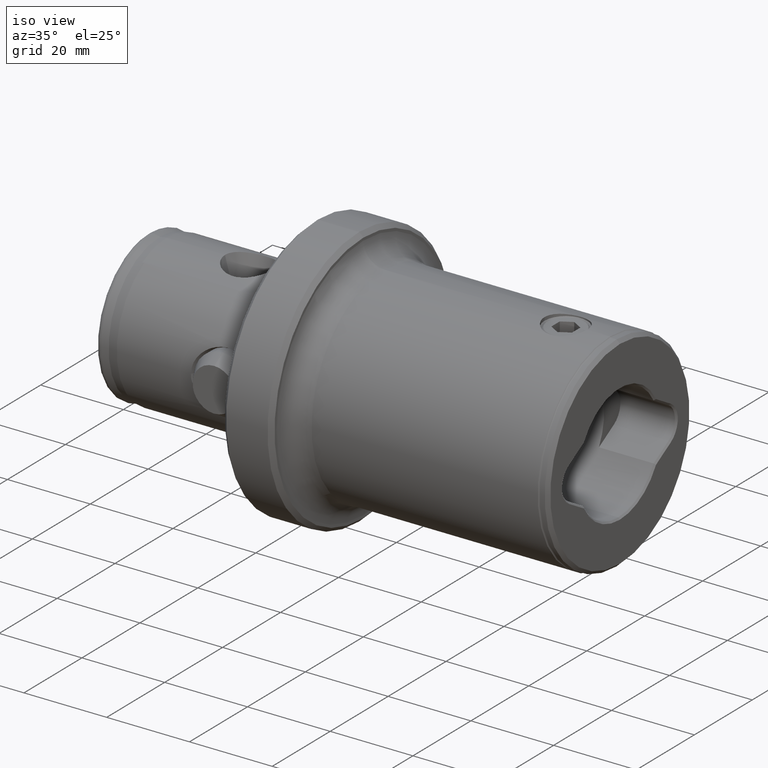
[diagram: clean part render]
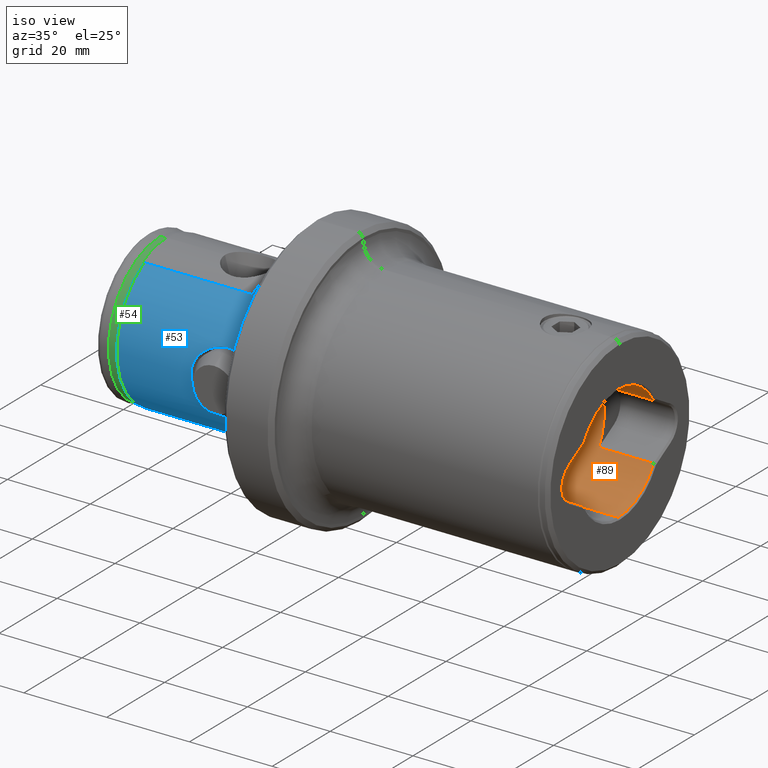
[diagram: same view with three faces highlighted in distinct colors, each labeled with its STEP entity id]
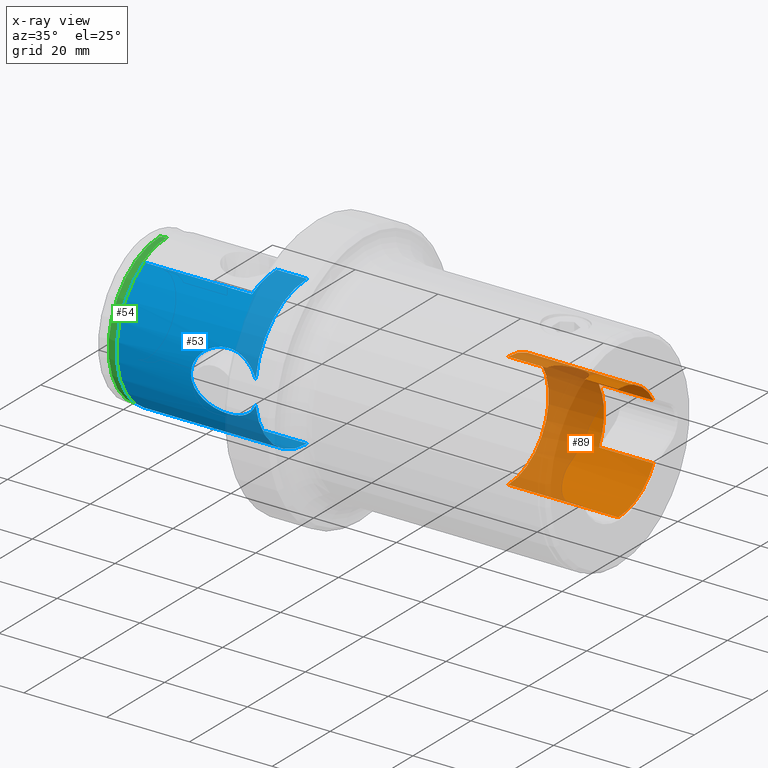
[diagram: x-ray of the same camera — body ghosted, the three highlighted faces saturated]
A machine part, iso view with three faces highlighted in distinct colors.
The next image is the same camera in x-ray (body ghosted, the three faces saturated) — at least one of them is partly hidden behind the body in this view.
Their STEP definitions:

[orange] entity #89 — the highlighted cylindrical surface (partial cylindrical patch) has radius 14 mm, axis along (1, 0, 0).
#36 = B_SPLINE_CURVE_WITH_KNOTS ( 'NONE', 3,
 ( #3804, #3805, #3806, #3807, #3808, #3809, #3810, #3811, #3812, #3813, #3814, #3815, #3816, #3817, #3818, #3819, #3820, #3821, #3822, #3823, #3824, #3825, #3826, #3827, #3828, #3829, #3830, #3831, #3832, #3833, #3834, #3835, #3836, #3837, #3838, #3839, #3840 ),
 .UNSPECIFIED., .F., .F.,
 ( 4, 2, 2, 2, 2, 2, 2, 2, 2, 2, 2, 2, 1, 2, 2, 2, 2, 2, 4 ),
 ( 0.0000000000000000000, 0.06249950408667014800, 0.07812438010833752700, 0.09374925613000491300, 0.1249990081733396800, 0.1874985122600092400, 0.1953109502708440500, 0.2031233882816788600, 0.2187482643033471200, 0.2499980163466850300, 0.3124975204333608200, 0.3203099584441949600, 0.3281223964550291600, 0.3437472724766987300, 0.3749970245200379700, 0.4062467765633772100, 0.4374965286067164500, 0.4687462806500556900, 0.4999960326933949300 ),
 .UNSPECIFIED. ) ;
#89 = ADVANCED_FACE ( 'NONE', ( #2107 ), #2108, .F. ) ;
#136 = EDGE_CURVE ( 'NONE', #1863, #1823, #396, .T. ) ;
#137 = EDGE_CURVE ( 'NONE', #1750, #1762, #2154, .T. ) ;
#238 = EDGE_CURVE ( 'NONE', #1723, #1750, #3104, .T. ) ;
#322 = AXIS2_PLACEMENT_3D ( 'NONE', #1187, #1188, #1189 ) ;
#396 = CIRCLE ( 'NONE', #397, 13.99999999999999500 ) ;
#397 = AXIS2_PLACEMENT_3D ( 'NONE', #2604, #2605, #2606 ) ;
#400 = VECTOR ( 'NONE', #2608, 1000.000000000000000 ) ;
#610 = ORIENTED_EDGE ( 'NONE', *, *, #1283, .F. ) ;
#613 = ORIENTED_EDGE ( 'NONE', *, *, #1291, .T. ) ;
#614 = ORIENTED_EDGE ( 'NONE', *, *, #136, .T. ) ;
#615 = ORIENTED_EDGE ( 'NONE', *, *, #137, .T. ) ;
#616 = ORIENTED_EDGE ( 'NONE', *, *, #238, .T. ) ;
#830 = ORIENTED_EDGE ( 'NONE', *, *, #1327, .T. ) ;
#831 = ORIENTED_EDGE ( 'NONE', *, *, #1326, .F. ) ;
#832 = ORIENTED_EDGE ( 'NONE', *, *, #1328, .T. ) ;
#833 = ORIENTED_EDGE ( 'NONE', *, *, #1285, .F. ) ;
#834 = ORIENTED_EDGE ( 'NONE', *, *, #1329, .T. ) ;
#1187 = CARTESIAN_POINT ( 'NONE',  ( 114.0000000000000000, 0.0000000000000000000, 0.0000000000000000000 ) ) ;
#1188 = DIRECTION ( 'NONE',  ( 1.000000000000000000, -0.0000000000000000000, -0.0000000000000000000 ) ) ;
#1189 = DIRECTION ( 'NONE',  ( 0.0000000000000000000, 0.0000000000000000000, -1.000000000000000000 ) ) ;
#1283 = EDGE_CURVE ( 'NONE', #1863, #1715, #2204, .T. ) ;
#1285 = EDGE_CURVE ( 'NONE', #1717, #1718, #2205, .T. ) ;
#1291 = EDGE_CURVE ( 'NONE', #1823, #1723, #2208, .T. ) ;
#1326 = EDGE_CURVE ( 'NONE', #1834, #1762, #3189, .T. ) ;
#1327 = EDGE_CURVE ( 'NONE', #1834, #1746, #2223, .T. ) ;
#1328 = EDGE_CURVE ( 'NONE', #1746, #1718, #3200, .T. ) ;
#1329 = EDGE_CURVE ( 'NONE', #1717, #1715, #36, .T. ) ;
#1715 = VERTEX_POINT ( 'NONE', #4944 ) ;
#1717 = VERTEX_POINT ( 'NONE', #4946 ) ;
#1718 = VERTEX_POINT ( 'NONE', #4947 ) ;
#1723 = VERTEX_POINT ( 'NONE', #4952 ) ;
#1746 = VERTEX_POINT ( 'NONE', #4975 ) ;
#1750 = VERTEX_POINT ( 'NONE', #4979 ) ;
#1762 = VERTEX_POINT ( 'NONE', #4991 ) ;
#1823 = VERTEX_POINT ( 'NONE', #5052 ) ;
#1834 = VERTEX_POINT ( 'NONE', #5063 ) ;
#1863 = VERTEX_POINT ( 'NONE', #5092 ) ;
#1991 = EDGE_LOOP ( 'NONE', ( #610, #614, #613, #616, #615, #831, #830, #832, #833, #834 ) ) ;
#2107 = FACE_OUTER_BOUND ( 'NONE', #1991, .T. ) ;
#2108 = CYLINDRICAL_SURFACE ( 'NONE', #322, 13.99999999999999500 ) ;
#2154 = LINE ( 'NONE', #2607, #400 ) ;
#2204 = LINE ( 'NONE', #3635, #3138 ) ;
#2205 = LINE ( 'NONE', #3640, #3140 ) ;
#2208 = LINE ( 'NONE', #3655, #3149 ) ;
#2223 = LINE ( 'NONE', #3799, #3202 ) ;
#2604 = CARTESIAN_POINT ( 'NONE',  ( 87.00000000000000000, 0.0000000000000000000, 0.0000000000000000000 ) ) ;
#2605 = DIRECTION ( 'NONE',  ( -1.000000000000000000, -0.0000000000000000000, -0.0000000000000000000 ) ) ;
#2606 = DIRECTION ( 'NONE',  ( 0.0000000000000000000, 0.0000000000000000000, -1.000000000000000000 ) ) ;
#2607 = CARTESIAN_POINT ( 'NONE',  ( 114.0000000000000000, 12.19736786006797200, -6.871987870054826300 ) ) ;
#2608 = DIRECTION ( 'NONE',  ( -1.000000000000000000, 0.0000000000000000000, 0.0000000000000000000 ) ) ;
#3104 = CIRCLE ( 'NONE', #3106, 13.99999999999999500 ) ;
#3106 = AXIS2_PLACEMENT_3D ( 'NONE', #3539, #3540, #3541 ) ;
#3138 = VECTOR ( 'NONE', #3636, 1000.000000000000000 ) ;
#3140 = VECTOR ( 'NONE', #3641, 1000.000000000000000 ) ;
#3149 = VECTOR ( 'NONE', #3656, 1000.000000000000000 ) ;
#3189 = CIRCLE ( 'NONE', #3199, 13.99999999999999500 ) ;
#3199 = AXIS2_PLACEMENT_3D ( 'NONE', #3796, #3797, #3798 ) ;
#3200 = CIRCLE ( 'NONE', #3203, 13.99999999999999500 ) ;
#3202 = VECTOR ( 'NONE', #3800, 1000.000000000000000 ) ;
#3203 = AXIS2_PLACEMENT_3D ( 'NONE', #3801, #3802, #3803 ) ;
#3539 = CARTESIAN_POINT ( 'NONE',  ( 113.6000000000000100, 0.0000000000000000000, 0.0000000000000000000 ) ) ;
#3540 = DIRECTION ( 'NONE',  ( 1.000000000000000000, 0.0000000000000000000, 0.0000000000000000000 ) ) ;
#3541 = DIRECTION ( 'NONE',  ( 0.0000000000000000000, 0.0000000000000000000, -1.000000000000000000 ) ) ;
#3635 = CARTESIAN_POINT ( 'NONE',  ( 114.0000000000000000, 1.714505518806294000E-015, 13.99999999999999500 ) ) ;
#3636 = DIRECTION ( 'NONE',  ( 1.000000000000000000, -0.0000000000000000000, -0.0000000000000000000 ) ) ;
#3640 = CARTESIAN_POINT ( 'NONE',  ( 114.0000000000000000, 1.714505518806294000E-015, 13.99999999999999500 ) ) ;
#3641 = DIRECTION ( 'NONE',  ( 1.000000000000000000, -0.0000000000000000000, -0.0000000000000000000 ) ) ;
#3655 = CARTESIAN_POINT ( 'NONE',  ( 114.0000000000000000, 0.0000000000000000000, -13.99999999999999500 ) ) ;
#3656 = DIRECTION ( 'NONE',  ( 1.000000000000000000, -0.0000000000000000000, -0.0000000000000000000 ) ) ;
#3796 = CARTESIAN_POINT ( 'NONE',  ( 100.4000000000327500, 0.0000000000000000000, 0.0000000000000000000 ) ) ;
#3797 = DIRECTION ( 'NONE',  ( -1.000000000000000000, -0.0000000000000000000, -0.0000000000000000000 ) ) ;
#3798 = DIRECTION ( 'NONE',  ( 0.0000000000000000000, 1.776356839400250500E-015, -1.000000000000000000 ) ) ;
#3799 = CARTESIAN_POINT ( 'NONE',  ( 114.0000000000000000, 12.19736786006796200, 6.871987870054847600 ) ) ;
#3800 = DIRECTION ( 'NONE',  ( 1.000000000000000000, -0.0000000000000000000, -0.0000000000000000000 ) ) ;
#3801 = CARTESIAN_POINT ( 'NONE',  ( 113.6000000000000100, 0.0000000000000000000, 0.0000000000000000000 ) ) ;
#3802 = DIRECTION ( 'NONE',  ( 1.000000000000000000, 0.0000000000000000000, 0.0000000000000000000 ) ) ;
#3803 = DIRECTION ( 'NONE',  ( 0.0000000000000000000, 0.0000000000000000000, -1.000000000000000000 ) ) ;
#3804 = CARTESIAN_POINT ( 'NONE',  ( 105.6000000466383400, 2.508869421684596900E-015, 13.99999999999999500 ) ) ;
#3805 = CARTESIAN_POINT ( 'NONE',  ( 105.5999976720447600, 0.5938018025182010300, 13.99999999999999600 ) ) ;
#3806 = CARTESIAN_POINT ( 'NONE',  ( 105.4794854614293500, 1.174034650935874600, 13.96219866452422500 ) ) ;
#3807 = CARTESIAN_POINT ( 'NONE',  ( 105.1782079031328600, 1.877158052867872400, 13.87430581872047100 ) ) ;
#3808 = CARTESIAN_POINT ( 'NONE',  ( 105.1131750404500500, 2.010653873775271300, 13.85549408032046200 ) ) ;
#3809 = CARTESIAN_POINT ( 'NONE',  ( 104.9699836961270700, 2.271706722817667500, 13.81509297020573400 ) ) ;
#3810 = CARTESIAN_POINT ( 'NONE',  ( 104.8924203484131400, 2.397875020013725300, 13.79367725016355300 ) ) ;
#3811 = CARTESIAN_POINT ( 'NONE',  ( 104.6418272786140000, 2.763332466569450800, 13.72681100810909900 ) ) ;
#3812 = CARTESIAN_POINT ( 'NONE',  ( 104.4508945298714900, 2.989564212874435100, 13.67876506009999500 ) ) ;
#3813 = CARTESIAN_POINT ( 'NONE',  ( 103.8064841770147700, 3.616707355888971500, 13.53158744978233900 ) ) ;
#3814 = CARTESIAN_POINT ( 'NONE',  ( 103.3049126319278800, 3.940376265468107200, 13.43621099365294400 ) ) ;
#3815 = CARTESIAN_POINT ( 'NONE',  ( 102.6634154932051500, 4.199745788673714000, 13.35526288517267300 ) ) ;
#3816 = CARTESIAN_POINT ( 'NONE',  ( 102.5895855555175600, 4.227642564713509200, 13.34645117750440100 ) ) ;
#3817 = CARTESIAN_POINT ( 'NONE',  ( 102.4437856302734200, 4.278796150722119900, 13.33013969128049000 ) ) ;
#3818 = CARTESIAN_POINT ( 'NONE',  ( 102.3706550461953400, 4.302522237460953700, 13.32249345431489100 ) ) ;
#3819 = CARTESIAN_POINT ( 'NONE',  ( 102.1505714295931300, 4.368175610425317300, 13.30117136243730900 ) ) ;
#3820 = CARTESIAN_POINT ( 'NONE',  ( 102.0029265327010000, 4.404579328301195100, 13.28911667183571900 ) ) ;
#3821 = CARTESIAN_POINT ( 'NONE',  ( 101.5572243845526400, 4.491868673230759300, 13.25997284048085200 ) ) ;
#3822 = CARTESIAN_POINT ( 'NONE',  ( 101.2563996758243500, 4.520856814323861900, 13.24997560997804200 ) ) ;
#3823 = CARTESIAN_POINT ( 'NONE',  ( 100.3428557197515100, 4.520785452917790400, 13.24999995815900500 ) ) ;
#3824 = CARTESIAN_POINT ( 'NONE',  ( 99.74821440243582100, 4.404664858736222900, 13.29133630302113300 ) ) ;
#3825 = CARTESIAN_POINT ( 'NONE',  ( 99.09323034741656500, 4.140086637813083400, 13.37387868059382100 ) ) ;
#3826 = CARTESIAN_POINT ( 'NONE',  ( 99.02411246696291900, 4.110284243416490600, 13.38307386722010200 ) ) ;
#3827 = CARTESIAN_POINT ( 'NONE',  ( 98.88551266987072100, 4.046751183028869800, 13.40242170504278900 ) ) ;
#3828 = CARTESIAN_POINT ( 'NONE',  ( 98.68090584385085200, 3.947109744631693000, 13.43239446022396200 ) ) ;
#3829 = CARTESIAN_POINT ( 'NONE',  ( 98.48617762668662600, 3.834366267092764500, 13.46494390449829500 ) ) ;
#3830 = CARTESIAN_POINT ( 'NONE',  ( 98.10989267083219500, 3.591195532004421300, 13.53261359593668300 ) ) ;
#3831 = CARTESIAN_POINT ( 'NONE',  ( 97.87659800489468900, 3.405499115871407900, 13.58120139603786400 ) ) ;
#3832 = CARTESIAN_POINT ( 'NONE',  ( 97.44513261561728300, 2.985808234256541700, 13.67959812188163800 ) ) ;
#3833 = CARTESIAN_POINT ( 'NONE',  ( 97.25547773729455500, 2.760862692621061300, 13.72730444646208500 ) ) ;
#3834 = CARTESIAN_POINT ( 'NONE',  ( 96.92177540063308100, 2.273955117672684000, 13.81630841781460700 ) ) ;
#3835 = CARTESIAN_POINT ( 'NONE',  ( 96.77881920707587000, 2.013048130802515900, 13.85735669206463200 ) ) ;
#3836 = CARTESIAN_POINT ( 'NONE',  ( 96.54069676950852900, 1.456310997435955200, 13.92687529730855000 ) ) ;
#3837 = CARTESIAN_POINT ( 'NONE',  ( 96.44997564013783600, 1.169418148817476400, 13.95408467175335500 ) ) ;
#3838 = CARTESIAN_POINT ( 'NONE',  ( 96.33005621202586600, 0.5908482686282320300, 13.99052951666607400 ) ) ;
#3839 = CARTESIAN_POINT ( 'NONE',  ( 96.30005089425390000, 0.2972843603838706800, 14.00000000000001200 ) ) ;
#3840 = CARTESIAN_POINT ( 'NONE',  ( 96.29999996673352300, -3.807692995555003300E-013, 13.99999999826350500 ) ) ;
#4944 = CARTESIAN_POINT ( 'NONE',  ( 96.29999996673352300, -3.807692995555003300E-013, 13.99999999826350500 ) ) ;
#4946 = CARTESIAN_POINT ( 'NONE',  ( 105.6000000466383400, 2.508869421684596900E-015, 13.99999999999999500 ) ) ;
#4947 = CARTESIAN_POINT ( 'NONE',  ( 113.6000000000000100, 1.714505518806294000E-015, 13.99999999999999500 ) ) ;
#4952 = CARTESIAN_POINT ( 'NONE',  ( 113.6000000000000100, 0.0000000000000000000, -13.99999999999999500 ) ) ;
#4975 = CARTESIAN_POINT ( 'NONE',  ( 113.6000000000000100, 12.19736786006796200, 6.871987870054847600 ) ) ;
#4979 = CARTESIAN_POINT ( 'NONE',  ( 113.6000000000000100, 12.19736786006797200, -6.871987870054826300 ) ) ;
#4991 = CARTESIAN_POINT ( 'NONE',  ( 100.4000000000327500, 12.19736786006797200, -6.871987870054826300 ) ) ;
#5052 = CARTESIAN_POINT ( 'NONE',  ( 87.00000000000000000, 0.0000000000000000000, -13.99999999999999500 ) ) ;
#5063 = CARTESIAN_POINT ( 'NONE',  ( 100.4000000000327500, 12.19736786006796500, 6.871987870054845800 ) ) ;
#5092 = CARTESIAN_POINT ( 'NONE',  ( 87.00000000000000000, 1.714505518806294000E-015, 13.99999999999999500 ) ) ;

[blue] entity #53 — the highlighted cylindrical surface (partial cylindrical patch) has radius 18 mm, axis along (-1, -0, -0).
#24 = B_SPLINE_CURVE_WITH_KNOTS ( 'NONE', 3,
 ( #3370, #3371, #3372, #3373, #3374, #3375, #3376, #3377, #3378, #3379, #3380, #3381, #3382, #3383, #3384, #3385, #3386, #3387, #3388, #3389, #3390, #3391, #3392, #3393, #3394, #3395, #3396, #3397, #3398, #3399, #3400, #3401, #3402, #3403 ),
 .UNSPECIFIED., .F., .F.,
 ( 4, 2, 2, 2, 2, 2, 2, 2, 2, 2, 2, 2, 2, 2, 2, 2, 4 ),
 ( 4.577879042442670400E-007, 0.001322458026375351200, 0.002644458264846457000, 0.003966458503317562900, 0.005288458741788668900, 0.007932459218730859200, 0.01057645969567305400, 0.01189845993414415100, 0.01322046017261524800, 0.01388146029185079700, 0.01454246041108634600, 0.01586446064955743900, 0.01652546076879299000, 0.01718646088802854400, 0.01850846112649964100, 0.01983046136497074200, 0.02115246160344183900 ),
 .UNSPECIFIED. ) ;
#53 = ADVANCED_FACE ( 'NONE', ( #2054 ), #2055, .T. ) ;
#202 = EDGE_CURVE ( 'NONE', #1728, #1789, #2183, .T. ) ;
#205 = EDGE_CURVE ( 'NONE', #1826, #1827, #2185, .T. ) ;
#219 = EDGE_CURVE ( 'NONE', #1728, #1795, #3077, .T. ) ;
#220 = EDGE_CURVE ( 'NONE', #1795, #1790, #24, .T. ) ;
#221 = EDGE_CURVE ( 'NONE', #1818, #1826, #3074, .T. ) ;
#222 = EDGE_CURVE ( 'NONE', #1827, #1731, #3065, .T. ) ;
#223 = EDGE_CURVE ( 'NONE', #1729, #1731, #2191, .T. ) ;
#224 = EDGE_CURVE ( 'NONE', #1789, #1729, #3085, .T. ) ;
#274 = AXIS2_PLACEMENT_3D ( 'NONE', #1069, #1070, #1071 ) ;
#728 = ORIENTED_EDGE ( 'NONE', *, *, #220, .T. ) ;
#729 = ORIENTED_EDGE ( 'NONE', *, *, #202, .F. ) ;
#730 = ORIENTED_EDGE ( 'NONE', *, *, #219, .T. ) ;
#731 = ORIENTED_EDGE ( 'NONE', *, *, #1502, .T. ) ;
#732 = ORIENTED_EDGE ( 'NONE', *, *, #221, .T. ) ;
#733 = ORIENTED_EDGE ( 'NONE', *, *, #205, .T. ) ;
#734 = ORIENTED_EDGE ( 'NONE', *, *, #222, .T. ) ;
#735 = ORIENTED_EDGE ( 'NONE', *, *, #224, .F. ) ;
#736 = ORIENTED_EDGE ( 'NONE', *, *, #223, .F. ) ;
#1069 = CARTESIAN_POINT ( 'NONE',  ( 0.0000000000000000000, 0.0000000000000000000, 0.0000000000000000000 ) ) ;
#1070 = DIRECTION ( 'NONE',  ( -1.000000000000000000, -0.0000000000000000000, -0.0000000000000000000 ) ) ;
#1071 = DIRECTION ( 'NONE',  ( 0.0000000000000000000, 0.0000000000000000000, 1.000000000000000000 ) ) ;
#1502 = EDGE_CURVE ( 'NONE', #1790, #1818, #4436, .T. ) ;
#1728 = VERTEX_POINT ( 'NONE', #4957 ) ;
#1729 = VERTEX_POINT ( 'NONE', #4958 ) ;
#1731 = VERTEX_POINT ( 'NONE', #4960 ) ;
#1789 = VERTEX_POINT ( 'NONE', #5018 ) ;
#1790 = VERTEX_POINT ( 'NONE', #5019 ) ;
#1795 = VERTEX_POINT ( 'NONE', #5024 ) ;
#1818 = VERTEX_POINT ( 'NONE', #5047 ) ;
#1826 = VERTEX_POINT ( 'NONE', #5055 ) ;
#1827 = VERTEX_POINT ( 'NONE', #5056 ) ;
#1955 = EDGE_LOOP ( 'NONE', ( #729, #730, #728, #731, #732, #733, #734, #736, #735 ) ) ;
#2054 = FACE_OUTER_BOUND ( 'NONE', #1955, .T. ) ;
#2055 = CYLINDRICAL_SURFACE ( 'NONE', #274, 17.99999999999999600 ) ;
#2183 = LINE ( 'NONE', #3024, #3062 ) ;
#2185 = LINE ( 'NONE', #3224, #3066 ) ;
#2191 = LINE ( 'NONE', #3410, #3090 ) ;
#3024 = CARTESIAN_POINT ( 'NONE',  ( 0.0000000000000000000, 2.204364238465235000E-015, -17.99999999999999600 ) ) ;
#3025 = DIRECTION ( 'NONE',  ( -1.000000000000000000, -0.0000000000000000000, -0.0000000000000000000 ) ) ;
#3062 = VECTOR ( 'NONE', #3025, 1000.000000000000000 ) ;
#3065 = CIRCLE ( 'NONE', #3088, 17.99999999999999600 ) ;
#3066 = VECTOR ( 'NONE', #3225, 1000.000000000000000 ) ;
#3074 = CIRCLE ( 'NONE', #3086, 17.99999999999999600 ) ;
#3077 = CIRCLE ( 'NONE', #3084, 17.99999999999999600 ) ;
#3084 = AXIS2_PLACEMENT_3D ( 'NONE', #3367, #3368, #3369 ) ;
#3085 = CIRCLE ( 'NONE', #3091, 17.99999999999999600 ) ;
#3086 = AXIS2_PLACEMENT_3D ( 'NONE', #3404, #3405, #3406 ) ;
#3088 = AXIS2_PLACEMENT_3D ( 'NONE', #3407, #3408, #3409 ) ;
#3090 = VECTOR ( 'NONE', #3411, 1000.000000000000000 ) ;
#3091 = AXIS2_PLACEMENT_3D ( 'NONE', #3412, #3413, #3414 ) ;
#3224 = CARTESIAN_POINT ( 'NONE',  ( 0.0000000000000000000, 0.0000000000000000000, 17.99999999999999600 ) ) ;
#3225 = DIRECTION ( 'NONE',  ( -1.000000000000000000, -0.0000000000000000000, -0.0000000000000000000 ) ) ;
#3367 = CARTESIAN_POINT ( 'NONE',  ( 38.41455850893560600, 0.0000000000000000000, 0.0000000000000000000 ) ) ;
#3368 = DIRECTION ( 'NONE',  ( -1.000000000000000000, -0.0000000000000000000, -0.0000000000000000000 ) ) ;
#3369 = DIRECTION ( 'NONE',  ( 0.0000000000000000000, 0.0000000000000000000, 1.000000000000000000 ) ) ;
#3370 = CARTESIAN_POINT ( 'NONE',  ( 38.41455850893560600, -17.77522644697580400, -2.835722969320488000 ) ) ;
#3371 = CARTESIAN_POINT ( 'NONE',  ( 38.22202641015762500, -17.71137844337933100, -3.235942854828807800 ) ) ;
#3372 = CARTESIAN_POINT ( 'NONE',  ( 37.99507072658234100, -17.63819116553967000, -3.608611484859332500 ) ) ;
#3373 = CARTESIAN_POINT ( 'NONE',  ( 37.48000134479384800, -17.48095693202914100, -4.306275557987756700 ) ) ;
#3374 = CARTESIAN_POINT ( 'NONE',  ( 37.19181581959278300, -17.39685469061268800, -4.631205550346419600 ) ) ;
#3375 = CARTESIAN_POINT ( 'NONE',  ( 36.55468267699610200, -17.22472107593113900, -5.235227008662178600 ) ) ;
#3376 = CARTESIAN_POINT ( 'NONE',  ( 36.21322769332759600, -17.13878982586033600, -5.507046361843750400 ) ) ;
#3377 = CARTESIAN_POINT ( 'NONE',  ( 35.49110008079965400, -16.97506229770261800, -5.992740301033031800 ) ) ;
#3378 = CARTESIAN_POINT ( 'NONE',  ( 35.10789554115506000, -16.89673571953524300, -6.208021203796724000 ) ) ;
#3379 = CARTESIAN_POINT ( 'NONE',  ( 33.90767941334524200, -16.68575959259132400, -6.763301545005892200 ) ) ;
#3380 = CARTESIAN_POINT ( 'NONE',  ( 33.06418919238630100, -16.58110238672853100, -7.005946324575755400 ) ) ;
#3381 = CARTESIAN_POINT ( 'NONE',  ( 31.29240741784635600, -16.48024312334201700, -7.240015666940879100 ) ) ;
#3382 = CARTESIAN_POINT ( 'NONE',  ( 30.41020211864762100, -16.48695642536555500, -7.225324597065639200 ) ) ;
#3383 = CARTESIAN_POINT ( 'NONE',  ( 29.09236604569098000, -16.58033015242459400, -7.007061721065089600 ) ) ;
#3384 = CARTESIAN_POINT ( 'NONE',  ( 28.66104706392762600, -16.62489959843416200, -6.901745302739101400 ) ) ;
#3385 = CARTESIAN_POINT ( 'NONE',  ( 27.82750759339947800, -16.73481497316496900, -6.630787486854876200 ) ) ;
#3386 = CARTESIAN_POINT ( 'NONE',  ( 27.42298261577181200, -16.80032814206619900, -6.464797898938757100 ) ) ;
#3387 = CARTESIAN_POINT ( 'NONE',  ( 26.83486332975320800, -16.91066245934652900, -6.167710642925292100 ) ) ;
#3388 = CARTESIAN_POINT ( 'NONE',  ( 26.64157620203354400, -16.94955171960911500, -6.060299734026395800 ) ) ;
#3389 = CARTESIAN_POINT ( 'NONE',  ( 26.26807447496163300, -17.02921293655130700, -5.832704614802511700 ) ) ;
#3390 = CARTESIAN_POINT ( 'NONE',  ( 26.08701584136921200, -17.07013154472707200, -5.712141590260361400 ) ) ;
#3391 = CARTESIAN_POINT ( 'NONE',  ( 25.56070703825799100, -17.19484585362744500, -5.330017455493422300 ) ) ;
#3392 = CARTESIAN_POINT ( 'NONE',  ( 25.23217109824211200, -17.28061527093933600, -5.048216595888839600 ) ) ;
#3393 = CARTESIAN_POINT ( 'NONE',  ( 24.77460461053110000, -17.40800939251690600, -4.581184096426450300 ) ) ;
#3394 = CARTESIAN_POINT ( 'NONE',  ( 24.62724907952210900, -17.45048579386304900, -4.417122096926794600 ) ) ;
#3395 = CARTESIAN_POINT ( 'NONE',  ( 24.34938088761634500, -17.53280446781712600, -4.078135548785401600 ) ) ;
#3396 = CARTESIAN_POINT ( 'NONE',  ( 24.21894353323254400, -17.57260398758734600, -3.903507979642044700 ) ) ;
#3397 = CARTESIAN_POINT ( 'NONE',  ( 23.85309246069682100, -17.68667767651107100, -3.364011678637006700 ) ) ;
#3398 = CARTESIAN_POINT ( 'NONE',  ( 23.64288762371046100, -17.75566459521486700, -2.983681196165116000 ) ) ;
#3399 = CARTESIAN_POINT ( 'NONE',  ( 23.29528484649193100, -17.87247591824912600, -2.177288049322134300 ) ) ;
#3400 = CARTESIAN_POINT ( 'NONE',  ( 23.15830401345507600, -17.92017665140759400, -1.747722691840148900 ) ) ;
#3401 = CARTESIAN_POINT ( 'NONE',  ( 22.97804128174147900, -17.98345985487322500, -0.8845549578120601700 ) ) ;
#3402 = CARTESIAN_POINT ( 'NONE',  ( 22.93190200199918000, -18.00000000000001400, -0.4459675859626626700 ) ) ;
#3403 = CARTESIAN_POINT ( 'NONE',  ( 22.93190200199920200, -17.99999999999999600, 3.085024895232098400E-016 ) ) ;
#3404 = CARTESIAN_POINT ( 'NONE',  ( 38.41455850893560600, 0.0000000000000000000, 0.0000000000000000000 ) ) ;
#3405 = DIRECTION ( 'NONE',  ( -1.000000000000000000, -0.0000000000000000000, -0.0000000000000000000 ) ) ;
#3406 = DIRECTION ( 'NONE',  ( 0.0000000000000000000, 0.0000000000000000000, 1.000000000000000000 ) ) ;
#3407 = CARTESIAN_POINT ( 'NONE',  ( 31.00000000000000000, 0.0000000000000000000, 0.0000000000000000000 ) ) ;
#3408 = DIRECTION ( 'NONE',  ( 1.000000000000000000, 0.0000000000000000000, 0.0000000000000000000 ) ) ;
#3409 = DIRECTION ( 'NONE',  ( 0.0000000000000000000, 0.0000000000000000000, -1.000000000000000000 ) ) ;
#3410 = CARTESIAN_POINT ( 'NONE',  ( 0.0000000000000000000, -8.500000000000000000, 15.86663165262242700 ) ) ;
#3411 = DIRECTION ( 'NONE',  ( 1.000000000000000000, 0.0000000000000000000, 0.0000000000000000000 ) ) ;
#3412 = CARTESIAN_POINT ( 'NONE',  ( 5.000000000000000000, 0.0000000000000000000, 0.0000000000000000000 ) ) ;
#3413 = DIRECTION ( 'NONE',  ( -1.000000000000000000, -0.0000000000000000000, -0.0000000000000000000 ) ) ;
#3414 = DIRECTION ( 'NONE',  ( 0.0000000000000000000, 0.0000000000000000000, 1.000000000000000000 ) ) ;
#4436 = B_SPLINE_CURVE_WITH_KNOTS ( 'NONE', 3,
 ( #4742, #4743, #4744, #4745, #4746, #4747, #4748, #4749, #4750, #4751, #4752, #4753, #4754, #4755, #4756, #4757, #4758, #4759, #4760, #4761, #4762, #4763, #4764, #4765, #4766, #4767, #4768, #4769, #4770, #4771, #4772, #4773, #4774, #4775, #4776, #4777, #4778, #4779, #4780, #4781, #4782, #4783, #4784, #4785 ),
 .UNSPECIFIED., .F., .F.,
 ( 4, 2, 2, 2, 2, 2, 2, 2, 2, 2, 2, 2, 2, 2, 2, 2, 2, 2, 2, 2, 2, 4 ),
 ( 0.02115246160344183900, 0.02181163685404288000, 0.02247081210464392200, 0.02312998735524496000, 0.02378916260584600100, 0.02510751310704808400, 0.02576668835764912500, 0.02642586360825016600, 0.02774421410945224600, 0.02906256461065432500, 0.03038091511185640700, 0.03169926561305848300, 0.03301761611426056600, 0.03367679136486160400, 0.03433596661546264900, 0.03565431711666474500, 0.03631349236726579000, 0.03697266761786682800, 0.03829101811906889000, 0.03960936862027095200, 0.04092771912147301300, 0.04224606962267507500 ),
 .UNSPECIFIED. ) ;
#4742 = CARTESIAN_POINT ( 'NONE',  ( 22.93190200199920200, -17.99999999999999600, 3.085024895232098400E-016 ) ) ;
#4743 = CARTESIAN_POINT ( 'NONE',  ( 22.93190200199918000, -18.00000000000001100, 0.2223681862393999700 ) ) ;
#4744 = CARTESIAN_POINT ( 'NONE',  ( 22.94367595310295000, -17.99580027013313800, 0.4471889289731262900 ) ) ;
#4745 = CARTESIAN_POINT ( 'NONE',  ( 22.98988810258071800, -17.97940423527511200, 0.8887230419490964600 ) ) ;
#4746 = CARTESIAN_POINT ( 'NONE',  ( 23.02425016441473500, -17.96723550562959900, 1.106892443189611400 ) ) ;
#4747 = CARTESIAN_POINT ( 'NONE',  ( 23.11478158759929600, -17.93545795733993500, 1.538216647952701700 ) ) ;
#4748 = CARTESIAN_POINT ( 'NONE',  ( 23.17095251667248600, -17.91584822628500700, 1.751371063957983600 ) ) ;
#4749 = CARTESIAN_POINT ( 'NONE',  ( 23.30497479576796800, -17.86964433764414700, 2.172723985473332200 ) ) ;
#4750 = CARTESIAN_POINT ( 'NONE',  ( 23.38329582901154400, -17.84289450996995500, 2.381806135342095000 ) ) ;
#4751 = CARTESIAN_POINT ( 'NONE',  ( 23.64566208641628000, -17.75474333346021900, 2.989419509541599900 ) ) ;
#4752 = CARTESIAN_POINT ( 'NONE',  ( 23.85750885869408600, -17.68523608111670600, 3.371825672240127400 ) ) ;
#4753 = CARTESIAN_POINT ( 'NONE',  ( 24.22687376565739800, -17.57016493283338900, 3.914524254010229400 ) ) ;
#4754 = CARTESIAN_POINT ( 'NONE',  ( 24.35930608591732800, -17.52980924945723400, 4.090973167800267000 ) ) ;
#4755 = CARTESIAN_POINT ( 'NONE',  ( 24.63768963552766800, -17.44745180740874000, 4.429074306236848300 ) ) ;
#4756 = CARTESIAN_POINT ( 'NONE',  ( 24.78358047319915500, -17.40545715193043800, 4.590845063067937400 ) ) ;
#4757 = CARTESIAN_POINT ( 'NONE',  ( 25.24046607749859900, -17.27841695341687300, 5.055640001721186200 ) ) ;
#4758 = CARTESIAN_POINT ( 'NONE',  ( 25.57051944790432800, -17.19230766410023400, 5.338307320903720000 ) ) ;
#4759 = CARTESIAN_POINT ( 'NONE',  ( 26.28103683236055900, -17.02437799103098100, 5.851796466726587400 ) ) ;
#4760 = CARTESIAN_POINT ( 'NONE',  ( 26.65561954242215800, -16.94405153630165700, 6.078050009428262800 ) ) ;
#4761 = CARTESIAN_POINT ( 'NONE',  ( 27.43382822492043300, -16.79854006849518900, 6.469360551794836500 ) ) ;
#4762 = CARTESIAN_POINT ( 'NONE',  ( 27.83873325934380500, -16.73302960472693700, 6.635306235133280800 ) ) ;
#4763 = CARTESIAN_POINT ( 'NONE',  ( 28.68138952076553100, -16.62253385687451900, 6.907455158285628700 ) ) ;
#4764 = CARTESIAN_POINT ( 'NONE',  ( 29.11157131061686700, -16.57868659642610600, 7.010930212151300200 ) ) ;
#4765 = CARTESIAN_POINT ( 'NONE',  ( 29.97935113376586000, -16.51777580569728700, 7.153256191057052700 ) ) ;
#4766 = CARTESIAN_POINT ( 'NONE',  ( 30.41852971967278000, -16.50049754671717400, 7.192609744928047300 ) ) ;
#4767 = CARTESIAN_POINT ( 'NONE',  ( 31.08550284957112100, -16.49607939498168800, 7.202734074813106300 ) ) ;
#4768 = CARTESIAN_POINT ( 'NONE',  ( 31.30974720235423100, -16.49823352362514600, 7.197811783345348300 ) ) ;
#4769 = CARTESIAN_POINT ( 'NONE',  ( 31.75299422472885900, -16.50963188584525600, 7.171628745439575100 ) ) ;
#4770 = CARTESIAN_POINT ( 'NONE',  ( 31.97293723778898300, -16.51885065342714400, 7.150425261665531300 ) ) ;
#4771 = CARTESIAN_POINT ( 'NONE',  ( 32.62784339102091000, -16.55653905059476100, 7.062934800613087200 ) ) ;
#4772 = CARTESIAN_POINT ( 'NONE',  ( 33.05791230149482400, -16.59505067668716500, 6.972935452718095600 ) ) ;
#4773 = CARTESIAN_POINT ( 'NONE',  ( 33.69317158907112700, -16.67064728046171500, 6.789249089393551100 ) ) ;
#4774 = CARTESIAN_POINT ( 'NONE',  ( 33.90419519246359700, -16.69896088935173500, 6.719494189788389500 ) ) ;
#4775 = CARTESIAN_POINT ( 'NONE',  ( 34.31726394228276400, -16.76025306473324200, 6.565121031389971900 ) ) ;
#4776 = CARTESIAN_POINT ( 'NONE',  ( 34.51937693814512900, -16.79320269221629400, 6.480585405933672000 ) ) ;
#4777 = CARTESIAN_POINT ( 'NONE',  ( 35.11280500872537400, -16.89776905071099500, 6.205157255918478200 ) ) ;
#4778 = CARTESIAN_POINT ( 'NONE',  ( 35.49130736388082900, -16.97510437362035400, 5.992625391793068500 ) ) ;
#4779 = CARTESIAN_POINT ( 'NONE',  ( 36.21364680603051100, -17.13888977652443300, 5.506739943906401500 ) ) ;
#4780 = CARTESIAN_POINT ( 'NONE',  ( 36.55892626127640500, -17.22586525208657100, 5.231223017239345000 ) ) ;
#4781 = CARTESIAN_POINT ( 'NONE',  ( 37.18792591636155000, -17.39580606940595000, 4.634874230737766600 ) ) ;
#4782 = CARTESIAN_POINT ( 'NONE',  ( 37.47501851690158500, -17.47947963081395200, 4.312294449917641400 ) ) ;
#4783 = CARTESIAN_POINT ( 'NONE',  ( 37.99157687428584800, -17.63708151982496400, 3.614062402598964900 ) ) ;
#4784 = CARTESIAN_POINT ( 'NONE',  ( 38.22231277592995000, -17.71147340875381100, 3.235347581223307200 ) ) ;
#4785 = CARTESIAN_POINT ( 'NONE',  ( 38.41455850893560600, -17.77522644697580000, 2.835722969320496400 ) ) ;
#4957 = CARTESIAN_POINT ( 'NONE',  ( 38.41455850893560600, 2.204364238465235000E-015, -17.99999999999999600 ) ) ;
#4958 = CARTESIAN_POINT ( 'NONE',  ( 5.000000000000000000, -8.500000000000000000, 15.86663165262242700 ) ) ;
#4960 = CARTESIAN_POINT ( 'NONE',  ( 31.00000000000000000, -8.499999999999996400, 15.86663165262242400 ) ) ;
#5018 = CARTESIAN_POINT ( 'NONE',  ( 5.000000000000000000, 2.204364238465235000E-015, -17.99999999999999600 ) ) ;
#5019 = CARTESIAN_POINT ( 'NONE',  ( 22.93190200199920200, -17.99999999999999600, 3.085024895232098400E-016 ) ) ;
#5024 = CARTESIAN_POINT ( 'NONE',  ( 38.41455850893560600, -17.77522644697580400, -2.835722969320488000 ) ) ;
#5047 = CARTESIAN_POINT ( 'NONE',  ( 38.41455850893560600, -17.77522644697580000, 2.835722969320496400 ) ) ;
#5055 = CARTESIAN_POINT ( 'NONE',  ( 38.41455850893560600, 0.0000000000000000000, 17.99999999999999600 ) ) ;
#5056 = CARTESIAN_POINT ( 'NONE',  ( 31.00000000000000000, 0.0000000000000000000, 17.99999999999999600 ) ) ;

[green] entity #54 — the highlighted conical surface has half-angle 8 deg.
#28 = B_SPLINE_CURVE_WITH_KNOTS ( 'NONE', 3,
 ( #3418, #3419, #3420, #3421, #3422, #3423, #3424 ),
 .UNSPECIFIED., .F., .F.,
 ( 4, 3, 4 ),
 ( 0.005382555537049032700, 0.005590410817593494300, 0.005826930303133250400 ),
 .UNSPECIFIED. ) ;
#34 = B_SPLINE_CURVE_WITH_KNOTS ( 'NONE', 3,
 ( #3774, #3775, #3776, #3777, #3778, #3779, #3780, #3781 ),
 .UNSPECIFIED., .F., .F.,
 ( 4, 2, 2, 4 ),
 ( 0.008809959860789792800, 0.01101086519072195400, 0.01321177052065411500, 0.01761358118051843700 ),
 .UNSPECIFIED. ) ;
#54 = ADVANCED_FACE ( 'NONE', ( #2056 ), #275, .T. ) ;
#197 = EDGE_CURVE ( 'NONE', #1742, #1839, #2181, .T. ) ;
#201 = EDGE_CURVE ( 'NONE', #1806, #1789, #2182, .T. ) ;
#224 = EDGE_CURVE ( 'NONE', #1789, #1729, #3085, .T. ) ;
#225 = EDGE_CURVE ( 'NONE', #1806, #1742, #3083, .T. ) ;
#226 = EDGE_CURVE ( 'NONE', #1852, #1729, #28, .T. ) ;
#268 = AXIS2_PLACEMENT_3D ( 'NONE', #1072, #1073, #1074 ) ;
#275 = CONICAL_SURFACE ( 'NONE', #268, 17.99999999999999600, 0.1396263401595468100 ) ;
#737 = ORIENTED_EDGE ( 'NONE', *, *, #197, .F. ) ;
#738 = ORIENTED_EDGE ( 'NONE', *, *, #201, .T. ) ;
#739 = ORIENTED_EDGE ( 'NONE', *, *, #225, .F. ) ;
#740 = ORIENTED_EDGE ( 'NONE', *, *, #226, .F. ) ;
#741 = ORIENTED_EDGE ( 'NONE', *, *, #224, .T. ) ;
#743 = ORIENTED_EDGE ( 'NONE', *, *, #1322, .F. ) ;
#1072 = CARTESIAN_POINT ( 'NONE',  ( 5.000000000000000000, 0.0000000000000000000, 0.0000000000000000000 ) ) ;
#1073 = DIRECTION ( 'NONE',  ( 1.000000000000000000, 0.0000000000000000000, 0.0000000000000000000 ) ) ;
#1074 = DIRECTION ( 'NONE',  ( 0.0000000000000000000, 0.0000000000000000000, -1.000000000000000000 ) ) ;
#1322 = EDGE_CURVE ( 'NONE', #1839, #1852, #34, .T. ) ;
#1729 = VERTEX_POINT ( 'NONE', #4958 ) ;
#1742 = VERTEX_POINT ( 'NONE', #4971 ) ;
#1789 = VERTEX_POINT ( 'NONE', #5018 ) ;
#1806 = VERTEX_POINT ( 'NONE', #5035 ) ;
#1839 = VERTEX_POINT ( 'NONE', #5068 ) ;
#1852 = VERTEX_POINT ( 'NONE', #5081 ) ;
#1952 = EDGE_LOOP ( 'NONE', ( #737, #739, #738, #741, #740, #743 ) ) ;
#2056 = FACE_OUTER_BOUND ( 'NONE', #1952, .T. ) ;
#2181 = LINE ( 'NONE', #3000, #3058 ) ;
#2182 = LINE ( 'NONE', #3022, #3061 ) ;
#3000 = CARTESIAN_POINT ( 'NONE',  ( 5.000000000000000000, 2.204364238465235000E-015, 17.99999999999999600 ) ) ;
#3001 = DIRECTION ( 'NONE',  ( 0.9902680687415702500, 1.704378926181561200E-017, 0.1391731009600658800 ) ) ;
#3022 = CARTESIAN_POINT ( 'NONE',  ( 5.000000000000000000, 0.0000000000000000000, -17.99999999999999600 ) ) ;
#3023 = DIRECTION ( 'NONE',  ( 0.9902680687415702500, 0.0000000000000000000, -0.1391731009600658800 ) ) ;
#3058 = VECTOR ( 'NONE', #3001, 1000.000000000000000 ) ;
#3061 = VECTOR ( 'NONE', #3023, 1000.000000000000000 ) ;
#3083 = CIRCLE ( 'NONE', #3092, 17.69401595690456800 ) ;
#3085 = CIRCLE ( 'NONE', #3091, 17.99999999999999600 ) ;
#3091 = AXIS2_PLACEMENT_3D ( 'NONE', #3412, #3413, #3414 ) ;
#3092 = AXIS2_PLACEMENT_3D ( 'NONE', #3415, #3416, #3417 ) ;
#3412 = CARTESIAN_POINT ( 'NONE',  ( 5.000000000000000000, 0.0000000000000000000, 0.0000000000000000000 ) ) ;
#3413 = DIRECTION ( 'NONE',  ( -1.000000000000000000, -0.0000000000000000000, -0.0000000000000000000 ) ) ;
#3414 = DIRECTION ( 'NONE',  ( 0.0000000000000000000, 0.0000000000000000000, 1.000000000000000000 ) ) ;
#3415 = CARTESIAN_POINT ( 'NONE',  ( 2.822810404226113500, 0.0000000000000000000, 0.0000000000000000000 ) ) ;
#3416 = DIRECTION ( 'NONE',  ( -1.000000000000000000, -0.0000000000000000000, -0.0000000000000000000 ) ) ;
#3417 = DIRECTION ( 'NONE',  ( 0.0000000000000000000, 0.0000000000000000000, 1.000000000000000000 ) ) ;
#3418 = CARTESIAN_POINT ( 'NONE',  ( 4.561173011721243700, -8.499999999999998200, 15.79663165262243400 ) ) ;
#3419 = CARTESIAN_POINT ( 'NONE',  ( 4.629592276591505000, -8.500000000000000000, 15.80755104254830800 ) ) ;
#3420 = CARTESIAN_POINT ( 'NONE',  ( 4.698011937138936400, -8.500000000000000000, 15.81846795350520400 ) ) ;
#3421 = CARTESIAN_POINT ( 'NONE',  ( 4.766431990659278900, -8.500000000000000000, 15.82938240072041400 ) ) ;
#3422 = CARTESIAN_POINT ( 'NONE',  ( 4.844287486133799400, -8.500000000000000000, 15.84180200070681500 ) ) ;
#3423 = CARTESIAN_POINT ( 'NONE',  ( 4.922143490562184800, -8.500000000000000000, 15.85421841059769400 ) ) ;
#3424 = CARTESIAN_POINT ( 'NONE',  ( 5.000000000000000000, -8.500000000000000000, 15.86663165262242700 ) ) ;
#3774 = CARTESIAN_POINT ( 'NONE',  ( 4.501924119433152100, 1.318032018692837200E-015, 17.93000000000000000 ) ) ;
#3775 = CARTESIAN_POINT ( 'NONE',  ( 4.501924119433152100, -0.7337060415290779200, 17.93000000000000000 ) ) ;
#3776 = CARTESIAN_POINT ( 'NONE',  ( 4.503165590156450900, -1.466782719062482000, 17.88530954530814300 ) ) ;
#3777 = CARTESIAN_POINT ( 'NONE',  ( 4.508174742434703400, -2.931655298299230300, 17.70498212726888500 ) ) ;
#3778 = CARTESIAN_POINT ( 'NONE',  ( 4.511979581276668800, -3.666865337209434600, 17.56800739893154200 ) ) ;
#3779 = CARTESIAN_POINT ( 'NONE',  ( 4.526961478556947000, -5.815333669717913900, 17.02861748603704200 ) ) ;
#3780 = CARTESIAN_POINT ( 'NONE',  ( 4.541659314675777100, -7.188126997925748700, 16.49942231177207900 ) ) ;
#3781 = CARTESIAN_POINT ( 'NONE',  ( 4.561173011721243700, -8.499999999999998200, 15.79663165262243400 ) ) ;
#4958 = CARTESIAN_POINT ( 'NONE',  ( 5.000000000000000000, -8.500000000000000000, 15.86663165262242700 ) ) ;
#4971 = CARTESIAN_POINT ( 'NONE',  ( 2.822810404226113500, 2.185628119516886500E-015, 17.69401595690456800 ) ) ;
#5018 = CARTESIAN_POINT ( 'NONE',  ( 5.000000000000000000, 2.204364238465235000E-015, -17.99999999999999600 ) ) ;
#5035 = CARTESIAN_POINT ( 'NONE',  ( 2.822810404226113500, 0.0000000000000000000, -17.69401595690456800 ) ) ;
#5068 = CARTESIAN_POINT ( 'NONE',  ( 4.501924119433152100, 1.318032018692837200E-015, 17.93000000000000000 ) ) ;
#5081 = CARTESIAN_POINT ( 'NONE',  ( 4.561173011721243700, -8.499999999999998200, 15.79663165262243400 ) ) ;